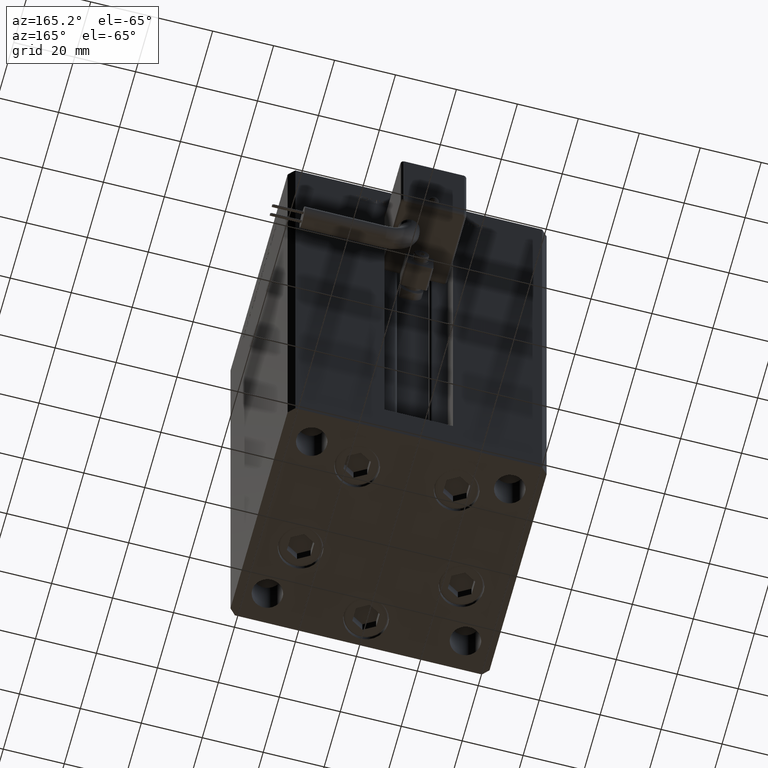
[diagram: clean part render]
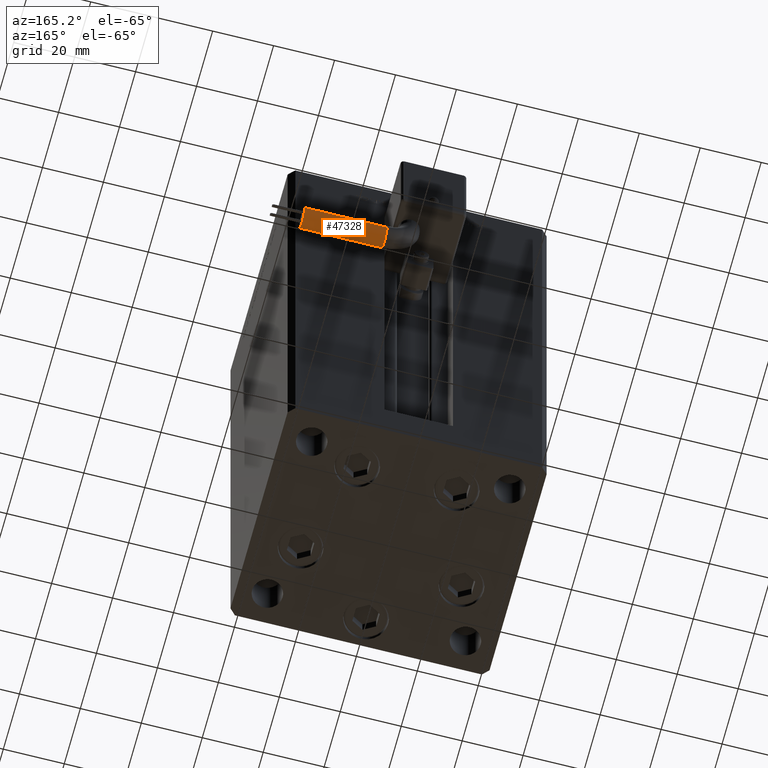
[diagram: same view with one face highlighted and labeled with its STEP entity id]
A machine part, auxiliary view. The second image highlights one B-rep face of the part: STEP entity #47328.
In plain terms, the highlighted cylindrical surface (edge-blend (fillet) strip) has radius 3.5 mm, axis along (1, -0, 0).
Its self-contained STEP definition (entity closure, byte-faithful):
#3443 = DIRECTION ( 'NONE',  ( 1.000000000000000000, -2.599999999999999847E-16, 2.220446049250000002E-16 ) ) ;
#3740 = EDGE_CURVE ( 'NONE', #10430, #5505, #28874, .T. ) ;
#5505 = VERTEX_POINT ( 'NONE', #50485 ) ;
#5913 = LINE ( 'NONE', #51970, #13912 ) ;
#6309 = VERTEX_POINT ( 'NONE', #41485 ) ;
#10430 = VERTEX_POINT ( 'NONE', #51042 ) ;
#13912 = VECTOR ( 'NONE', #31036, 1000.000000000000000 ) ;
#13913 = EDGE_CURVE ( 'NONE', #20437, #10430, #5913, .T. ) ;
#15335 = DIRECTION ( 'NONE',  ( 1.000000000000000000, 0.000000000000000000, 2.220446049250000002E-16 ) ) ;
#15981 = DIRECTION ( 'NONE',  ( 0.000000000000000000, 0.000000000000000000, -1.000000000000000000 ) ) ;
#16833 = LINE ( 'NONE', #54787, #45546 ) ;
#17361 = DIRECTION ( 'NONE',  ( -4.956352788505158337E-16, -1.000000000000000000, 0.000000000000000000 ) ) ;
#17913 = AXIS2_PLACEMENT_3D ( 'NONE', #33782, #54159, #50240 ) ;
#18092 = CARTESIAN_POINT ( 'NONE',  ( 13.79999999999999893, 38.50000000000000000, -65.00000000000000000 ) ) ;
#20437 = VERTEX_POINT ( 'NONE', #18092 ) ;
#21326 = ORIENTED_EDGE ( 'NONE', *, *, #31587, .T. ) ;
#25721 = DIRECTION ( 'NONE',  ( 1.000000000000000000, -2.599999999999999847E-16, 2.220446049250000002E-16 ) ) ;
#27443 = ORIENTED_EDGE ( 'NONE', *, *, #3740, .F. ) ;
#27886 = CARTESIAN_POINT ( 'NONE',  ( 40.80000000000000426, 42.00000000000000000, -65.00000000000000000 ) ) ;
#28859 = ORIENTED_EDGE ( 'NONE', *, *, #37953, .T. ) ;
#28874 = CIRCLE ( 'NONE', #35148, 3.500000000000003109 ) ;
#30155 = CIRCLE ( 'NONE', #31925, 3.500000000000003109 ) ;
#31036 = DIRECTION ( 'NONE',  ( 1.000000000000000000, -2.599999999999999847E-16, 2.220446049250000002E-16 ) ) ;
#31300 = ORIENTED_EDGE ( 'NONE', *, *, #13913, .F. ) ;
#31587 = EDGE_CURVE ( 'NONE', #20437, #6309, #46417, .T. ) ;
#31925 = AXIS2_PLACEMENT_3D ( 'NONE', #45009, #54206, #15981 ) ;
#32320 = EDGE_CURVE ( 'NONE', #44407, #5505, #16833, .T. ) ;
#32683 = EDGE_LOOP ( 'NONE', ( #21326, #28859, #42919, #27443, #31300 ) ) ;
#33217 = CARTESIAN_POINT ( 'NONE',  ( 13.79999999999999893, 45.50000000000000711, -65.00000000000000000 ) ) ;
#33782 = CARTESIAN_POINT ( 'NONE',  ( 13.79999999999999893, 42.00000000000000000, -65.00000000000000000 ) ) ;
#35148 = AXIS2_PLACEMENT_3D ( 'NONE', #27886, #15335, #49361 ) ;
#37953 = EDGE_CURVE ( 'NONE', #6309, #44407, #30155, .T. ) ;
#41485 = CARTESIAN_POINT ( 'NONE',  ( 13.79999999999999893, 42.00000000000000000, -68.50000000000000000 ) ) ;
#42919 = ORIENTED_EDGE ( 'NONE', *, *, #32320, .T. ) ;
#44407 = VERTEX_POINT ( 'NONE', #33217 ) ;
#45009 = CARTESIAN_POINT ( 'NONE',  ( 13.79999999999999893, 42.00000000000000000, -65.00000000000000000 ) ) ;
#45546 = VECTOR ( 'NONE', #3443, 1000.000000000000000 ) ;
#46417 = CIRCLE ( 'NONE', #17913, 3.500000000000003109 ) ;
#47205 = FACE_OUTER_BOUND ( 'NONE', #32683, .T. ) ;
#47273 = AXIS2_PLACEMENT_3D ( 'NONE', #51666, #25721, #17361 ) ;
#47328 = ADVANCED_FACE ( 'NONE', ( #47205 ), #47751, .T. ) ;
#47751 = CYLINDRICAL_SURFACE ( 'NONE', #47273, 3.500000000000003109 ) ;
#49361 = DIRECTION ( 'NONE',  ( 0.000000000000000000, 0.000000000000000000, -1.000000000000000000 ) ) ;
#50240 = DIRECTION ( 'NONE',  ( 0.000000000000000000, 0.000000000000000000, -1.000000000000000000 ) ) ;
#50485 = CARTESIAN_POINT ( 'NONE',  ( 40.80000000000000426, 45.50000000000000711, -65.00000000000000000 ) ) ;
#51042 = CARTESIAN_POINT ( 'NONE',  ( 40.80000000000000426, 38.50000000000000000, -65.00000000000000000 ) ) ;
#51666 = CARTESIAN_POINT ( 'NONE',  ( 13.79999999999999893, 42.00000000000000000, -65.00000000000000000 ) ) ;
#51970 = CARTESIAN_POINT ( 'NONE',  ( 13.79999999999999716, 38.50000000000000000, -65.00000000000000000 ) ) ;
#54159 = DIRECTION ( 'NONE',  ( 1.000000000000000000, 0.000000000000000000, 2.220446049250000002E-16 ) ) ;
#54206 = DIRECTION ( 'NONE',  ( 1.000000000000000000, 0.000000000000000000, 2.220446049250000002E-16 ) ) ;
#54787 = CARTESIAN_POINT ( 'NONE',  ( 13.80000000000000071, 45.50000000000000711, -65.00000000000000000 ) ) ;